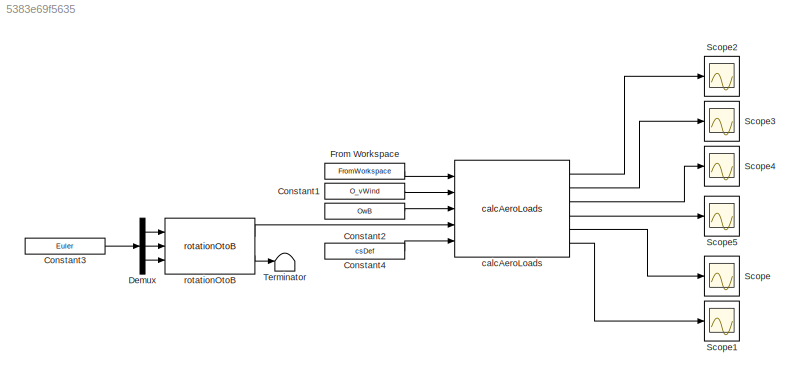
MODEL slx_5383e69f5635
KIND model
CONFIG AbsTol = auto
CONFIG EnableMultiTasking = off
CONFIG FixedStep = auto
CONFIG MaxStep = auto
CONFIG MinStep = auto
CONFIG RelTol = 1e-3
CONFIG SampleTimeConstraint = Unconstrained
CONFIG Solver = VariableStepAuto
CONFIG SolverName = VariableStepAuto
CONFIG StartTime = 0.0
CONFIG StopTime = timeVal(end)
BLOCK [Constant] Constant1
  Value = O_vWind
BLOCK [Constant] Constant2
  Value = OwB
BLOCK [Constant] Constant3
  Value = Euler
BLOCK [Constant] Constant4
  Value = csDef
BLOCK [Demux] Demux
  Outputs = 3
  Ports = [1, 3]
BLOCK [FromWorkspace] From Workspace
  VariableName = O_vKite_ts
BLOCK [Scope] Scope
  Floating = off
  NumInputPorts = 1
  Ports = [1]
  ScopeSpecificationString = Simulink.scopes.TimeScopeBlockCfg('CurrentConfiguration', extmgr.ConfigurationSet(extmgr.Configuration('Core','General UI',true),extmgr.Configuration('Core','Source UI',true),extmgr.Configuration('Sources','WiredSimulink',true),extmgr.Configuration('Visuals','Time Domain',true,'SerializedDisplays',{struct('MinYLimReal','-1.81541','MaxYLimReal','1.50193','YLabelReal','','MinYLimMag','0.00000','MaxY...<+1424ch>
BLOCK [Scope] Scope1
  Floating = off
  NumInputPorts = 1
  Ports = [1]
  ScopeSpecificationString = Simulink.scopes.TimeScopeBlockCfg('CurrentConfiguration', extmgr.ConfigurationSet(extmgr.Configuration('Core','General UI',true),extmgr.Configuration('Core','Source UI',true),extmgr.Configuration('Sources','WiredSimulink',true,'DataLoggingVariableName','ScopeData1'),extmgr.Configuration('Visuals','Time Domain',true),extmgr.Configuration('Tools','Plot Navigation',true),extmgr.Configuration('Tools',...<+40ch>
BLOCK [Scope] Scope2
  Floating = off
  NumInputPorts = 1
  Ports = [1]
  ScopeSpecificationString = Simulink.scopes.TimeScopeBlockCfg('CurrentConfiguration', extmgr.ConfigurationSet(extmgr.Configuration('Core','General UI',true),extmgr.Configuration('Core','Source UI',true),extmgr.Configuration('Sources','WiredSimulink',true,'DataLoggingVariableName','ScopeData2'),extmgr.Configuration('Visuals','Time Domain',true,'SerializedDisplays',{struct('MinYLimReal','-0.03575','MaxYLimReal','0.02958','YLab...<+1434ch>
BLOCK [Scope] Scope3
  Floating = off
  NumInputPorts = 1
  Ports = [1]
  ScopeSpecificationString = Simulink.scopes.TimeScopeBlockCfg('CurrentConfiguration', extmgr.ConfigurationSet(extmgr.Configuration('Core','General UI',true),extmgr.Configuration('Core','Source UI',true),extmgr.Configuration('Sources','WiredSimulink',true,'DataLoggingVariableName','ScopeData3'),extmgr.Configuration('Visuals','Time Domain',true),extmgr.Configuration('Tools','Plot Navigation',true),extmgr.Configuration('Tools',...<+40ch>
BLOCK [Scope] Scope4
  Floating = off
  NumInputPorts = 1
  Ports = [1]
  ScopeSpecificationString = Simulink.scopes.TimeScopeBlockCfg('CurrentConfiguration', extmgr.ConfigurationSet(extmgr.Configuration('Core','General UI',true),extmgr.Configuration('Core','Source UI',true),extmgr.Configuration('Sources','WiredSimulink',true,'DataLoggingVariableName','ScopeData4'),extmgr.Configuration('Visuals','Time Domain',true,'SerializedDisplays',{struct('MinYLimReal','-0.32731','MaxYLimReal','0.32731','YLab...<+1443ch>
BLOCK [Scope] Scope5
  Floating = off
  NumInputPorts = 1
  Ports = [1]
  ScopeSpecificationString = Simulink.scopes.TimeScopeBlockCfg('CurrentConfiguration', extmgr.ConfigurationSet(extmgr.Configuration('Core','General UI',true),extmgr.Configuration('Core','Source UI',true),extmgr.Configuration('Sources','WiredSimulink',true,'DataLoggingVariableName','ScopeData5'),extmgr.Configuration('Visuals','Time Domain',true),extmgr.Configuration('Tools','Plot Navigation',true),extmgr.Configuration('Tools',...<+40ch>
BLOCK [Terminator] Terminator
BLOCK [Reference] calcAeroLoads  REF=calcAeroForcesInB/calcAeroLoads
  Ports = [5, 6]
  SourceBlock = calcAeroForcesInB/calcAeroLoads
BLOCK [Reference] rotationOtoB  REF=makeOcB_cl/rotationOtoB
  Ports = [3, 2]
  SourceBlock = makeOcB_cl/rotationOtoB
  SourceType = SubSystem
LINE Constant1:1 -> calcAeroLoads:2
LINE Constant2:1 -> calcAeroLoads:3
LINE Constant3:1 -> Demux:1
LINE Constant4:1 -> calcAeroLoads:5
LINE Demux:1 -> rotationOtoB:1
LINE Demux:2 -> rotationOtoB:2
LINE Demux:3 -> rotationOtoB:3
LINE From Workspace:1 -> calcAeroLoads:1
LINE calcAeroLoads:1 -> Scope2:1
LINE calcAeroLoads:2 -> Scope3:1
LINE calcAeroLoads:3 -> Scope4:1
LINE calcAeroLoads:4 -> Scope5:1
LINE calcAeroLoads:5 -> Scope:1
LINE calcAeroLoads:6 -> Scope1:1
LINE rotationOtoB:1 -> calcAeroLoads:4
LINE rotationOtoB:2 -> Terminator:1
